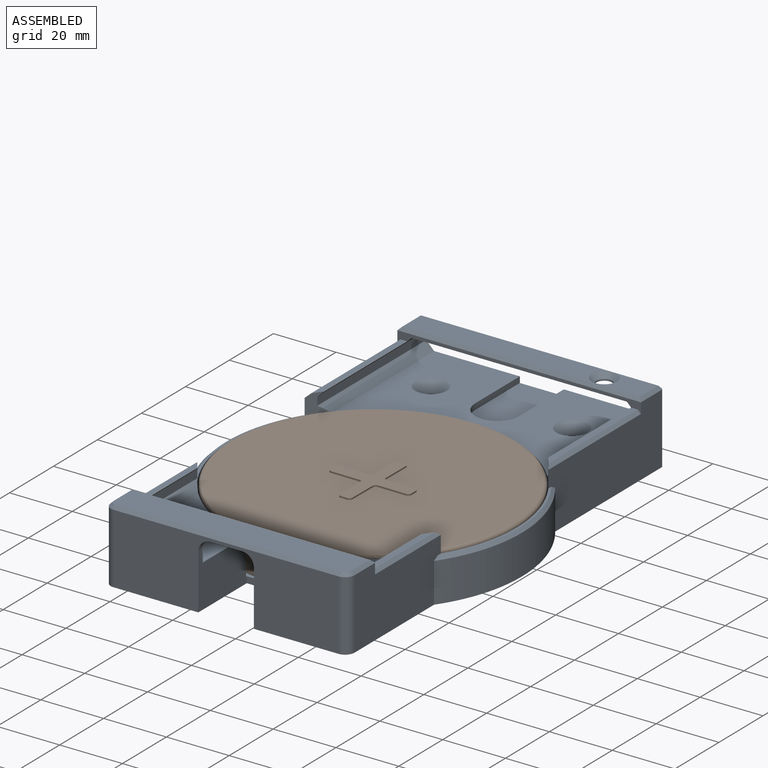
[diagram: assembled view]
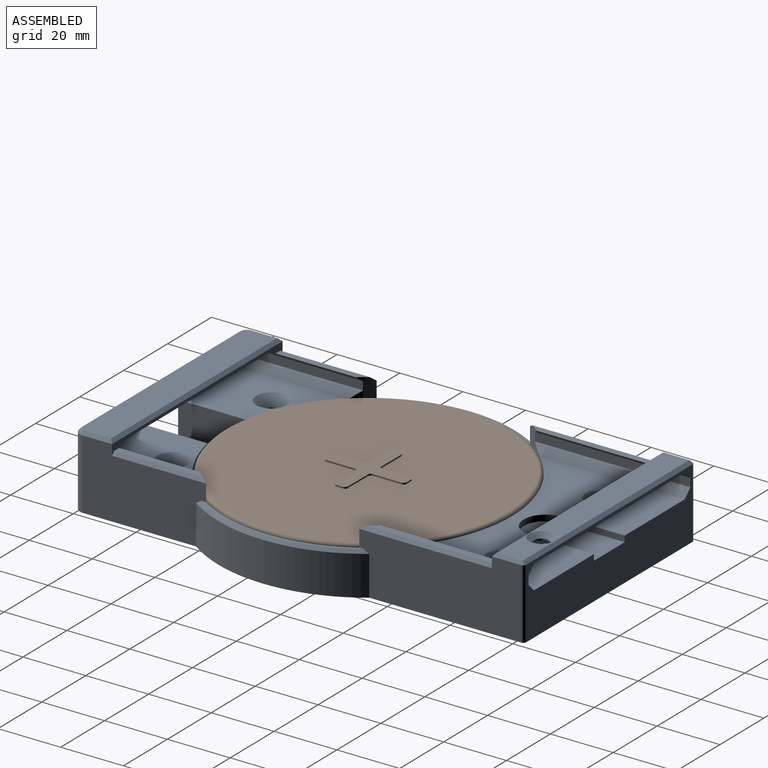
[diagram: assembled view, second angle]
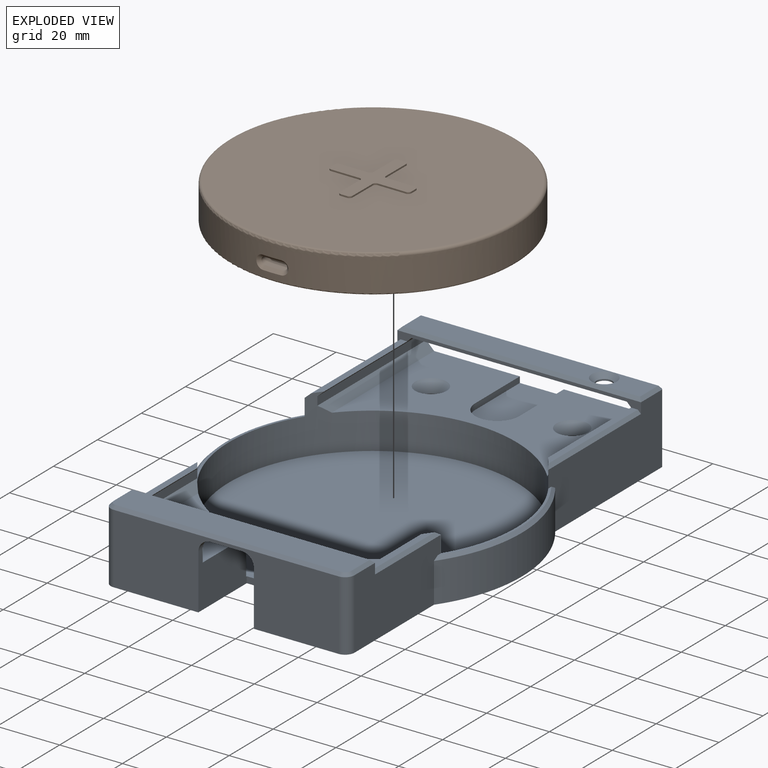
[diagram: exploded view]
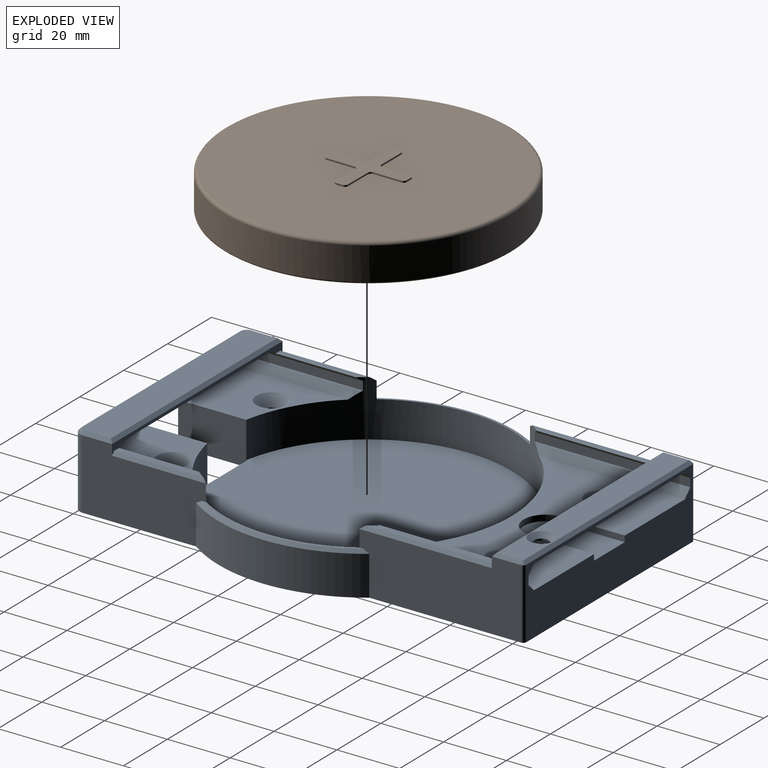
[diagram: exploded view, second angle]
FCSTD DOCUMENT  (FreeCAD 1.0R39319 (Git))
Label: NokiaSiroccoWallMount
License: All rights reserved
LicenseURL: https://en.wikipedia.org/wiki/All_rights_reserved
objects: Sketcher::SketchObject×11, PartDesign::Pocket×5, Part::Feature×5, PartDesign::Pad×4, PartDesign::Chamfer×4, Spreadsheet::Sheet×3, PartDesign::Hole×2, PartDesign::Fillet×2, App::Link×2, App::FeaturePython×2, PartDesign::Plane×1, PartDesign::Mirrored×1, PartDesign::Body×1, App::Part×1, Assembly::JointGroup×1, Assembly::AssemblyObject×1
note: 82 computed .brp shape members not serialized (recipe doc carries the construction recipe); baked Part::Feature solids carry a one-line shape summary decoded from their .brp

FEATURE [Spreadsheet::Sheet] Spreadsheet  label="phone"
  cells = A1='width; B1(width)==73 mm; A2='height; B2(height)==141 mm; A3='thickness; B3(thickness)==7.7 mm; A4='thickness camera; B4(thickness_camera)==9.3 mm; A5='top/bottom frame; B5(frame)==10 mm
FEATURE [Spreadsheet::Sheet] Spreadsheet001  label="config"
  cells = A1='clearance; B1(clearance)==0.3 mm; A2='thickness; B2(thickness)==2 mm
FEATURE [Sketcher::SketchObject] Sketch
  ArcFitTolerance = 1e-06
  AttachmentSupport = -> [XZ_Plane]
  FullyConstrained = true
  MakeInternals = false
  MapMode = 5
  Placement = pos=(0,0,0) rot=(1,0,0;1.5708rad)
  expr: Constraints[10] = <<config>>.thickness
  expr: Constraints[11] = <<config>>.thickness
  expr: Constraints[12] = <<phone>>.thickness
  expr: Constraints[22] = <<config>>.thickness
  expr: Constraints[9] = <<phone>>.width / 2 + <<config>>.clearance
  sketch-geometry (8):
    g0: LineSegment StartX=0 StartY=0 StartZ=0 EndX=-36.8 EndY=0 EndZ=0
    g1: LineSegment StartX=-36.8 StartY=0 StartZ=0 EndX=-36.8 EndY=7.7 EndZ=0
    g2: LineSegment StartX=0 StartY=9.7 StartZ=0 EndX=-38.8 EndY=9.7 EndZ=0
    g3: LineSegment StartX=-38.8 StartY=9.7 StartZ=0 EndX=-38.8 EndY=-2 EndZ=0
    g4: LineSegment StartX=-38.8 StartY=-2 StartZ=0 EndX=0 EndY=-2 EndZ=0
    g5: LineSegment StartX=0 StartY=0 StartZ=0 EndX=0 EndY=-2 EndZ=0
    g6: LineSegment StartX=-36.8 StartY=7.7 StartZ=0 EndX=0 EndY=7.7 EndZ=0
    g7: LineSegment StartX=0 StartY=7.7 StartZ=0 EndX=0 EndY=9.7 EndZ=0
  constraints (23):
    c: Coincident(g-1,g0)
    c: PointOnObject(g0,g-1)
    c: Coincident(g0,g1)
    c: Vertical(g1)
    c: Horizontal(g2)
    c: Coincident(g2,g3)
    c: Vertical(g3)
    c: Coincident(g3,g4)
    c: Horizontal(g4)
    c: DistanceX(g0,g0) = 36.8
    c: DistanceY(g4,g0) = 2
    c: DistanceX(g3,g0) = 2
    c: DistanceY(g1,g1) = 7.7
    c: PointOnObject(g4,g-2)
    c: Coincident(g5,g0)
    c: Coincident(g5,g4)
    c: Coincident(g1,g6)
    c: PointOnObject(g6,g-2)
    c: Horizontal(g6)
    c: Coincident(g6,g7)
    c: PointOnObject(g7,g-2)
    c: Coincident(g2,g7)
    c: DistanceY(g6,g2) = 2
FEATURE [PartDesign::Pad] Pad
  Direction = (0,-1,2e-16)
  Length = 141.6
  Length2 = 10
  Midplane = true
  Placement = pos=(0,0,0) rot=(1,0,0;1.5708rad)
  Profile = -> Sketch
  ReferenceAxis = -> Sketch [N_Axis]
  Refine = true
  Suppressed = false
  Type = 0
  expr: Length = <<phone>>.height + 2 * <<config>>.clearance
FEATURE [PartDesign::Plane] DatumPlane
  AttachmentOffset = pos=(0,0,70.8) rot=(0,0,1;0rad)
  AttachmentSupport = -> [XZ_Plane]
  Length = 108.98
  MapMode = 5
  Placement = pos=(0,-70.8,1.57e-14) rot=(1,0,0;1.5708rad)
  ResizeMode = 0
  Width = 63.7973
  expr: .AttachmentOffset.Base.z = <<phone>>.height / 2 + <<config>>.clearance
FEATURE [PartDesign::Chamfer] Chamfer
  Angle = 45
  Base = -> Pad [Edge5,Edge2]
  BaseFeature = -> Pad
  ChamferType = 0
  FlipDirection = false
  Placement = pos=(0,0,0) rot=(1,0,0;1.5708rad)
  Refine = true
  Size = 2.5
  Size2 = 1
  SupportTransform = false
  Suppressed = false
  UseAllEdges = false
FEATURE [PartDesign::Mirrored] Mirrored
  BaseFeature = -> Chamfer
  MirrorPlane = -> YZ_Plane
  Originals = -> [Chamfer,Pad]
  Placement = pos=(0,0,0) rot=(1,0,0;1.5708rad)
  Refine = true
  Suppressed = false
  TransformMode = 0
FEATURE [Sketcher::SketchObject] Sketch001
  ArcFitTolerance = 1e-06
  AttachmentSupport = -> [DatumPlane]
  ExternalGeometry = -> [Mirrored]
  FullyConstrained = true
  MakeInternals = false
  MapMode = 5
  Placement = pos=(0,-70.8,1.57e-14) rot=(1,0,0;1.5708rad)
  sketch-geometry (4):
    g0: LineSegment StartX=-38.8 StartY=9.7 StartZ=0 EndX=-38.8 EndY=-2 EndZ=0
    g1: LineSegment StartX=-38.8 StartY=-2 StartZ=0 EndX=38.8 EndY=-2 EndZ=0
    g2: LineSegment StartX=38.8 StartY=-2 StartZ=0 EndX=38.8 EndY=9.7 EndZ=0
    g3: LineSegment StartX=38.8 StartY=9.7 StartZ=0 EndX=-38.8 EndY=9.7 EndZ=0
  constraints (10):
    c: Coincident(g0,g1)
    c: Coincident(g1,g2)
    c: Coincident(g2,g3)
    c: Coincident(g3,g0)
    c: Vertical(g0)
    c: Vertical(g2)
    c: Horizontal(g1)
    c: Horizontal(g3)
    c: Coincident(g0,g-3)
    c: Coincident(g1,g-4)
FEATURE [PartDesign::Pad] Pad001
  BaseFeature = -> Mirrored
  Direction = (0,-1,2e-16)
  Length = 2
  Length2 = 10
  Placement = pos=(0,0,0) rot=(1,0,0;1.5708rad)
  Profile = -> Sketch001
  ReferenceAxis = -> Sketch001 [N_Axis]
  Refine = true
  Suppressed = false
  Type = 0
  expr: Length = <<config>>.thickness
FEATURE [Sketcher::SketchObject] Sketch002
  ArcFitTolerance = 1e-06
  AttachmentSupport = -> [YZ_Plane]
  FullyConstrained = true
  MakeInternals = false
  MapMode = 5
  Placement = pos=(0,0,0) rot=(0.57735,0.57735,0.57735;2.0944rad)
  expr: Constraints[10] = <<phone>>.height - 2 * <<phone>>.frame
  expr: Constraints[11] = <<phone>>.thickness / 2 + 2.5 mm
  sketch-geometry (5):
    g0: LineSegment StartX=-60.5 StartY=16.35 StartZ=0 EndX=-60.5 EndY=6.35 EndZ=0
    g1: LineSegment StartX=-60.5 StartY=6.35 StartZ=0 EndX=60.5 EndY=6.35 EndZ=0
    g2: LineSegment StartX=60.5 StartY=6.35 StartZ=0 EndX=60.5 EndY=16.35 EndZ=0
    g3: LineSegment StartX=60.5 StartY=16.35 StartZ=0 EndX=-60.5 EndY=16.35 EndZ=0
    g4: GeomPoint [constr] X=0 Y=11.35 Z=0
  constraints (13):
    c: Coincident(g0,g1)
    c: Coincident(g1,g2)
    c: Coincident(g2,g3)
    c: Coincident(g3,g0)
    c: Vertical(g0)
    c: Vertical(g2)
    c: Horizontal(g1)
    c: Horizontal(g3)
    c: Symmetric(g2,g0,g4)
    c: PointOnObject(g4,g-2)
    c: DistanceX(g3,g3) = 121
    c: DistanceY(g-1,g1) = 6.35
    c: DistanceY(g2,g2) = 10
FEATURE [PartDesign::Pocket] Pocket
  BaseFeature = -> Pad001
  Direction = (-1,0,0)
  Length = 5
  Length2 = 5
  Midplane = true
  Placement = pos=(0,0,0) rot=(1,0,0;1.5708rad)
  Profile = -> Sketch002
  ReferenceAxis = -> Sketch002 [N_Axis]
  Refine = true
  Suppressed = false
  Type = 1
FEATURE [Sketcher::SketchObject] Sketch003
  ArcFitTolerance = 1e-06
  AttachmentSupport = -> [XY_Plane]
  FullyConstrained = true
  MakeInternals = false
  MapMode = 5
  expr: Constraints[13] = <<phone>>.height / 2 + 10 mm
  expr: Constraints[22] = <<phone>>.height / 2 - 27 mm
  sketch-geometry (9):
    g0: LineSegment StartX=-7 StartY=80.5 StartZ=0 EndX=-7 EndY=50.5 EndZ=0
    g1: LineSegment [constr] StartX=-7 StartY=50.5 StartZ=0 EndX=7 EndY=50.5 EndZ=0
    g2: LineSegment StartX=7 StartY=50.5 StartZ=0 EndX=7 EndY=80.5 EndZ=0
    g3: LineSegment StartX=7 StartY=80.5 StartZ=0 EndX=-7 EndY=80.5 EndZ=0
    g4: GeomPoint [constr] X=0 Y=65.5 Z=0
    g5: ArcOfCircle CenterX=-1e-15 CenterY=50.5 CenterZ=0 NormalX=0 NormalY=0 NormalZ=1 AngleXU=0 Radius=7 StartAngle=3.14159 EndAngle=6.28319
    g6: LineSegment [constr] StartX=-7 StartY=50.5 StartZ=0 EndX=-7 EndY=43.5 EndZ=0
    g7: LineSegment [constr] StartX=-7 StartY=43.5 StartZ=0 EndX=7 EndY=43.5 EndZ=0
    g8: LineSegment [constr] StartX=7 StartY=43.5 StartZ=0 EndX=7 EndY=50.5 EndZ=0
  constraints (24):
    c: Coincident(g0,g1)
    c: Coincident(g1,g2)
    c: Coincident(g2,g3)
    c: Coincident(g3,g0)
    c: Vertical(g0)
    c: Vertical(g2)
    c: Horizontal(g1)
    c: Horizontal(g3)
    c: Symmetric(g2,g0,g4)
    c: PointOnObject(g4,g-2)
    c: Coincident(g5,g0)
    c: Coincident(g5,g1)
    c: PointOnObject(g5,g1)
    c: DistanceY(g-1,g2) = 80.5
    c: Coincident(g0,g6)
    c: Vertical(g6)
    c: Coincident(g6,g7)
    c: Horizontal(g7)
    c: Tangent(g7,g5)
    c: Coincident(g7,g8)
    c: Coincident(g8,g1)
    c: Vertical(g8)
    c: DistanceY(g-1,g6) = 43.5
    c: DistanceX(g3,g3) = 14
FEATURE [PartDesign::Pocket] Pocket001
  BaseFeature = -> Pocket
  Direction = (0,0,-1)
  Length = 1.9
  Length2 = 5
  Placement = pos=(0,0,0) rot=(1,0,0;1.5708rad)
  Profile = -> Sketch003
  ReferenceAxis = -> Sketch003 [N_Axis]
  Refine = true
  Suppressed = false
  Type = 0
  expr: Length = <<phone>>.thickness_camera - <<phone>>.thickness + <<config>>.clearance
FEATURE [Sketcher::SketchObject] Sketch004
  ArcFitTolerance = 1e-06
  AttachmentSupport = -> [DatumPlane]
  FullyConstrained = true
  MakeInternals = false
  MapMode = 5
  Placement = pos=(0,-70.8,1.57e-14) rot=(1,0,0;1.5708rad)
  expr: Constraints[6] = <<phone>>.thickness / 2
  expr: Constraints[7] = <<phone>>.thickness
  sketch-geometry (4):
    g0: ArcOfCircle CenterX=-5 CenterY=3.85 CenterZ=0 NormalX=0 NormalY=0 NormalZ=1 AngleXU=0 Radius=3.85 StartAngle=1.5708 EndAngle=4.71239
    g1: ArcOfCircle CenterX=5 CenterY=3.85 CenterZ=0 NormalX=0 NormalY=0 NormalZ=1 AngleXU=0 Radius=3.85 StartAngle=4.71239 EndAngle=7.85398
    g2: LineSegment StartX=-5 StartY=7.7 StartZ=0 EndX=5 EndY=7.7 EndZ=0
    g3: LineSegment StartX=-5 StartY=0 StartZ=0 EndX=5 EndY=0 EndZ=0
  constraints (9):
    c: Tangent(g0,g2) = 1.5708
    c: Tangent(g0,g3) = -1.5708
    c: Tangent(g1,g2) = 1.5708
    c: Tangent(g1,g3) = -1.5708
    c: Equal(g0,g1)
    c: Symmetric(g0,g1,g-2)
    c: DistanceY(g-1,g0) = 3.85
    c: DistanceY(g0,g0) = 7.7
    c: DistanceX(g3,g3) = 10
FEATURE [PartDesign::Pocket] Pocket002
  BaseFeature = -> Pocket001
  Direction = (0,1,-2e-16)
  Length = 5
  Length2 = 5
  Placement = pos=(0,0,0) rot=(1,0,0;1.5708rad)
  Profile = -> Sketch004
  ReferenceAxis = -> Sketch004 [N_Axis]
  Refine = true
  Reversed = true
  Suppressed = false
  Type = 0
FEATURE [Spreadsheet::Sheet] Spreadsheet002  label="charger"
  cells = A1='height; B1(height)==11.6 mm; A2='diameter; B2(diameter)==91.2 mm; A4='wall thickness; B4(wall_thickness)==2 mm
FEATURE [Sketcher::SketchObject] Sketch005
  ArcFitTolerance = 1e-06
  AttachmentSupport = -> [XY_Plane]
  ExternalGeometry = -> [Pocket002]
  FullyConstrained = true
  MakeInternals = false
  MapMode = 5
  expr: Constraints[0] = <<charger>>.diameter + <<charger>>.wall_thickness * 2
  sketch-geometry (2):
    g0: Circle CenterX=0 CenterY=-6.1 CenterZ=0 NormalX=0 NormalY=0 NormalZ=1 AngleXU=0 Radius=47.6
    g1: LineSegment [constr] StartX=0 StartY=43.5 StartZ=0 EndX=0 EndY=41.5 EndZ=0
  constraints (7):
    c: Diameter(g0) = 95.2
    c: PointOnObject(g0,g-2)
    c: PointOnObject(g1,g-3)
    c: PointOnObject(g1,g-2)
    c: PointOnObject(g1,g-2)
    c: PointOnObject(g1,g0)
    c: DistanceY(g1,g1) = 2
FEATURE [PartDesign::Pad] Pad002
  BaseFeature = -> Pocket002
  Direction = (0,0,1)
  Length = 13.6
  Length2 = 10
  Placement = pos=(0,0,0) rot=(1,0,0;1.5708rad)
  Profile = -> Sketch005
  ReferenceAxis = -> Sketch005 [N_Axis]
  Refine = true
  Reversed = true
  Suppressed = false
  Type = 0
  expr: Length = <<charger>>.height + <<config>>.thickness
FEATURE [Sketcher::SketchObject] Sketch006
  ArcFitTolerance = 1e-06
  AttachmentSupport = -> [Pad002]
  ExternalGeometry = -> [Pad002]
  FullyConstrained = true
  MakeInternals = false
  MapMode = 5
  Placement = pos=(0,-9e-16,-2) rot=(1,0,0;3.14159rad)
  sketch-geometry (4):
    g0: LineSegment StartX=-38.8 StartY=72.8 StartZ=0 EndX=-38.8 EndY=-70.8 EndZ=0
    g1: LineSegment StartX=-38.8 StartY=-70.8 StartZ=0 EndX=38.8 EndY=-70.8 EndZ=0
    g2: LineSegment StartX=38.8 StartY=-70.8 StartZ=0 EndX=38.8 EndY=72.8 EndZ=0
    g3: LineSegment StartX=38.8 StartY=72.8 StartZ=0 EndX=-38.8 EndY=72.8 EndZ=0
  constraints (10):
    c: Coincident(g0,g1)
    c: Coincident(g1,g2)
    c: Coincident(g2,g3)
    c: Coincident(g3,g0)
    c: Vertical(g0)
    c: Vertical(g2)
    c: Horizontal(g1)
    c: Horizontal(g3)
    c: Coincident(g0,g-3)
    c: Coincident(g1,g-4)
FEATURE [PartDesign::Pad] Pad003
  BaseFeature = -> Pad002
  Direction = (0,0,-1)
  Length = 10
  Length2 = 10
  Placement = pos=(0,0,0) rot=(1,0,0;1.5708rad)
  Profile = -> Sketch006
  ReferenceAxis = -> Sketch006 [N_Axis]
  Refine = true
  Suppressed = false
  Type = 3
  UpToFace = -> Pad002 [Face32]
FEATURE [Sketcher::SketchObject] Sketch007
  ArcFitTolerance = 1e-06
  AttachmentSupport = -> [XY_Plane]
  ExternalGeometry = -> [Pad003]
  FullyConstrained = true
  MakeInternals = false
  MapMode = 5
  expr: Constraints[1] = <<charger>>.diameter + 2 * 0.25 mm
  sketch-geometry (1):
    g0: Circle CenterX=0 CenterY=-6.1 CenterZ=0 NormalX=0 NormalY=0 NormalZ=1 AngleXU=0 Radius=45.85
  constraints (2):
    c: Coincident(g0,g-3)
    c: Diameter(g0) = 91.7
FEATURE [PartDesign::Pocket] Pocket003
  BaseFeature = -> Pad003
  Direction = (0,0,-1)
  Length = 11.6
  Length2 = 20
  Placement = pos=(0,0,0) rot=(1,0,0;1.5708rad)
  Profile = -> Sketch007
  ReferenceAxis = -> Sketch007 [N_Axis]
  Refine = true
  Suppressed = false
  Type = 4
  expr: Length = <<charger>>.height
FEATURE [Sketcher::SketchObject] Sketch008
  ArcFitTolerance = 1e-06
  AttachmentSupport = -> [Pocket003]
  FullyConstrained = true
  MakeInternals = false
  MapMode = 5
  Placement = pos=(0,-72.8,2.24e-14) rot=(1,0,0;1.5708rad)
  expr: Constraints[9] = <<charger>>.height * 2
  sketch-geometry (9):
    g0: LineSegment StartX=-8.85 StartY=-23.2 StartZ=0 EndX=8.85 EndY=-23.2 EndZ=0
    g1: LineSegment StartX=8.85 StartY=-23.2 StartZ=0 EndX=8.85 EndY=3.85 EndZ=0
    g2: LineSegment StartX=5 StartY=7.7 StartZ=0 EndX=-5 EndY=7.7 EndZ=0
    g3: LineSegment StartX=-8.85 StartY=3.85 StartZ=0 EndX=-8.85 EndY=-23.2 EndZ=0
    g4: GeomPoint [constr] X=0 Y=-7.75 Z=0
    g5: ArcOfCircle CenterX=-5 CenterY=3.85 CenterZ=0 NormalX=0 NormalY=0 NormalZ=1 AngleXU=0 Radius=3.85 StartAngle=1.5708 EndAngle=3.14159
    g6: GeomPoint [constr] X=-8.85 Y=7.7 Z=0
    g7: ArcOfCircle CenterX=5 CenterY=3.85 CenterZ=0 NormalX=0 NormalY=0 NormalZ=1 AngleXU=0 Radius=3.85 StartAngle=0 EndAngle=1.5708
    g8: GeomPoint [constr] X=8.85 Y=7.7 Z=0
  constraints (21):
    c: Coincident(g0,g1)
    c: Coincident(g3,g0)
    c: Horizontal(g0)
    c: Horizontal(g2)
    c: Vertical(g1)
    c: Vertical(g3)
    c: Symmetric(g8,g0,g4)
    c: PointOnObject(g4,g-2)
    c: DistanceY(g-1,g8) = 7.7
    c: DistanceY(g0,g-1) = 23.2
    c: PointOnObject(g6,g2)
    c: PointOnObject(g6,g3)
    c: Tangent(g2,g5) = -1.5708
    c: Tangent(g3,g5) = -1.5708
    c: PointOnObject(g8,g2)
    c: PointOnObject(g8,g1)
    c: Tangent(g2,g7) = -1.5708
    c: Tangent(g1,g7) = -1.5708
    c: DistanceX(g2,g2) = 10
    c: Diameter(g5) = 7.7
    c: Equal(g5,g7)
FEATURE [PartDesign::Pocket] Pocket004
  BaseFeature = -> Pocket003
  Direction = (0,1,-2e-16)
  Length = 22
  Length2 = 5
  Placement = pos=(0,0,0) rot=(1,0,0;1.5708rad)
  Profile = -> Sketch008
  ReferenceAxis = -> Sketch008 [N_Axis]
  Refine = true
  Suppressed = false
  Type = 0
FEATURE [Sketcher::SketchObject] Sketch009
  ArcFitTolerance = 1e-06
  AttachmentSupport = -> [Pocket004]
  FullyConstrained = true
  MakeInternals = false
  MapMode = 5
  Placement = pos=(0,0,4.6e-15) rot=(0,0,1;3.14159rad)
  sketch-geometry (9):
    g0: LineSegment [constr] StartX=-22.5 StartY=52.5 StartZ=0 EndX=-22.5 EndY=-52.5 EndZ=0
    g1: LineSegment [constr] StartX=-22.5 StartY=-52.5 StartZ=0 EndX=22.5 EndY=-52.5 EndZ=0
    g2: LineSegment [constr] StartX=22.5 StartY=-52.5 StartZ=0 EndX=22.5 EndY=52.5 EndZ=0
    g3: LineSegment [constr] StartX=22.5 StartY=52.5 StartZ=0 EndX=-22.5 EndY=52.5 EndZ=0
    g4: GeomPoint [constr] X=0 Y=-3.6e-15 Z=0
    g5: Circle CenterX=-22.5 CenterY=52.5 CenterZ=0 NormalX=0 NormalY=0 NormalZ=1 AngleXU=0 Radius=2
    g6: Circle CenterX=22.5 CenterY=52.5 CenterZ=0 NormalX=0 NormalY=0 NormalZ=1 AngleXU=0 Radius=2
    g7: Circle CenterX=22.5 CenterY=-52.5 CenterZ=0 NormalX=0 NormalY=0 NormalZ=1 AngleXU=0 Radius=2
    g8: Circle CenterX=-22.5 CenterY=-52.5 CenterZ=0 NormalX=0 NormalY=0 NormalZ=1 AngleXU=0 Radius=2
  constraints (20):
    c: Coincident(g0,g1)
    c: Coincident(g1,g2)
    c: Coincident(g2,g3)
    c: Coincident(g3,g0)
    c: Vertical(g2)
    c: Horizontal(g1)
    c: Horizontal(g3)
    c: Symmetric(g2,g0,g4)
    c: PointOnObject(g4,g-2)
    c: Coincident(g5,g0)
    c: Coincident(g6,g2)
    c: Coincident(g7,g1)
    c: Coincident(g8,g0)
    c: Equal(g6,g5)
    c: Equal(g5,g8)
    c: Equal(g5,g7)
    c: Diameter(g5) = 4
    c: DistanceY(g2,g2) = 105
    c: DistanceX(g1,g1) = 45
    c: Symmetric(g0,g0,g-1)
FEATURE [PartDesign::Hole] Hole
  BaseFeature = -> Pocket004
  CustomThreadClearance = 0
  Depth = 351.176
  DepthType = 1
  Diameter = 4
  DrillForDepth = false
  DrillPoint = 1
  DrillPointAngle = 118
  HoleCutCountersinkAngle = 90
  HoleCutCustomValues = false
  HoleCutDepth = 0
  HoleCutDiameter = 10
  HoleCutType = 2
  ModelThread = false
  Placement = pos=(0,0,0) rot=(1,0,0;1.5708rad)
  Profile = -> Sketch009
  Refine = true
  Suppressed = false
  Tapered = false
  TaperedAngle = 90
  ThreadClass = 0
  ThreadDepth = 351.176
  ThreadDepthType = 0
  ThreadDirection = 0
  ThreadFit = 0
  ThreadSize = 0
  ThreadType = 0
  Threaded = false
  UseCustomThreadClearance = false
FEATURE [Sketcher::SketchObject] Sketch010
  ArcFitTolerance = 1e-06
  AttachmentSupport = -> [Hole]
  ExternalGeometry = -> [Hole]
  FullyConstrained = true
  MakeInternals = false
  MapMode = 5
  Placement = pos=(0,4.3e-15,9.7) rot=(0,0,1;3.14159rad)
  expr: Constraints[0] = <<phone>>.width / 2 - 13 mm
  sketch-geometry (3):
    g0: Circle CenterX=-23.5 CenterY=-65.65 CenterZ=0 NormalX=0 NormalY=0 NormalZ=1 AngleXU=0 Radius=2.5
    g1: LineSegment [constr] StartX=-23.5 StartY=-65.65 StartZ=0 EndX=-23.5 EndY=-60.5 EndZ=0
    g2: LineSegment [constr] StartX=-23.5 StartY=-65.65 StartZ=0 EndX=-23.5 EndY=-70.8 EndZ=0
  constraints (9):
    c: DistanceX(g0,g-1) = 23.5
    c: Coincident(g1,g0)
    c: PointOnObject(g1,g-4)
    c: Vertical(g1)
    c: Coincident(g2,g0)
    c: PointOnObject(g2,g-3)
    c: Vertical(g2)
    c: Equal(g2,g1)
    c: Diameter(g0) = 5
FEATURE [PartDesign::Hole] Hole001
  BaseFeature = -> Hole
  CustomThreadClearance = 0
  Depth = 3
  DepthType = 0
  Diameter = 5
  DrillForDepth = false
  DrillPoint = 1
  DrillPointAngle = 118
  HoleCutCountersinkAngle = 90
  HoleCutCustomValues = false
  HoleCutDepth = 0
  HoleCutDiameter = 8
  HoleCutType = 2
  ModelThread = false
  Placement = pos=(0,0,0) rot=(1,0,0;1.5708rad)
  Profile = -> Sketch010
  Refine = true
  Suppressed = false
  Tapered = false
  TaperedAngle = 90
  ThreadClass = 0
  ThreadDepth = 3
  ThreadDepthType = 0
  ThreadDirection = 0
  ThreadFit = 0
  ThreadSize = 0
  ThreadType = 0
  Threaded = false
  UseCustomThreadClearance = false
FEATURE [PartDesign::Fillet] Fillet
  Base = -> Hole001 [Edge121,Edge111]
  BaseFeature = -> Hole001
  Placement = pos=(0,0,0) rot=(1,0,0;1.5708rad)
  Radius = 3
  Refine = true
  SupportTransform = false
  Suppressed = false
  UseAllEdges = false
FEATURE [PartDesign::Fillet] Fillet001
  Base = -> Fillet [Edge54,Edge45]
  BaseFeature = -> Fillet
  Placement = pos=(0,0,0) rot=(1,0,0;1.5708rad)
  Radius = 1
  Refine = true
  SupportTransform = false
  Suppressed = false
  UseAllEdges = false
FEATURE [PartDesign::Chamfer] Chamfer001
  Angle = 45
  Base = -> Fillet001 [Edge51,Edge73,Edge153]
  BaseFeature = -> Fillet001
  ChamferType = 0
  FlipDirection = false
  Placement = pos=(0,0,0) rot=(1,0,0;1.5708rad)
  Refine = true
  Size = 1
  Size2 = 1
  SupportTransform = false
  Suppressed = false
  UseAllEdges = false
FEATURE [PartDesign::Chamfer] Chamfer002
  Angle = 45
  Base = -> Chamfer001 [Edge90,Edge111,Edge188]
  BaseFeature = -> Chamfer001
  ChamferType = 0
  FlipDirection = false
  Placement = pos=(0,0,0) rot=(1,0,0;1.5708rad)
  Refine = true
  Size = 0.99
  Size2 = 1
  SupportTransform = false
  Suppressed = false
  UseAllEdges = false
FEATURE [PartDesign::Chamfer] Chamfer003
  Angle = 45
  Base = -> Chamfer002 [Edge102,Edge41,Edge43,Edge6,Edge121,Edge109,Edge105]
  BaseFeature = -> Chamfer002
  ChamferType = 0
  FlipDirection = false
  Placement = pos=(0,0,0) rot=(1,0,0;1.5708rad)
  Refine = true
  Size = 1
  Size2 = 1
  SupportTransform = false
  Suppressed = false
  UseAllEdges = false
FEATURE [PartDesign::Body] Body
  AllowCompound = false
  Group = -> [Sketch,Pad,DatumPlane,Chamfer,Mirrored,Sketch001,Pad001,Sketch002,Pocket,Sketch003,Pocket001,Sketch004,Pocket002,Sketch005,Pad002,Sketch006,Pad003,Sketch007,Pocket003,Sketch008,Pocket004,Sketch009,Hole,Sketch010,Hole001,Fillet,Fillet001,Chamfer001,Chamfer002,Chamfer003]
  Origin = -> Origin
  Tip = -> Chamfer003
FEATURE [Part::Feature] Part__Feature  label="Fabric"
  shape: bbox 98.5 x 98.5 x 2 mm, 4 faces (baked)
FEATURE [Part::Feature] Part__Feature001  label="Plus"
  shape: bbox 26 x 26 x 0.5 mm, 26 faces (baked)
FEATURE [Part::Feature] Part__Feature002  label="Rubber pads"
  shape: bbox 69.64 x 34 x 0.4 mm, 10 faces (baked)
FEATURE [Part::Feature] Part__Feature003  label="Rubber pads 2"
  shape: bbox 69.64 x 34 x 0.4 mm, 10 faces (baked)
FEATURE [Part::Feature] Part__Feature004  label="SOLID"
  shape: bbox 98.5 x 98.5 x 10 mm, 21 faces (baked)
FEATURE [App::Part] IKEA_NORDM_X_C4RKE_v6  label="IKEA NORDM\X\C4RKE v6"
  Group = -> [Part__Feature,Part__Feature001,Part__Feature002,Part__Feature003,Part__Feature004]
  Origin = -> Origin001
FEATURE [App::Link] Body001
  LinkedObject = -> Body
FEATURE [App::FeaturePython] GroundedJoint  # Assembly grounded joint (typed FeaturePython)
  ObjectToGround = -> Body001
FEATURE [App::Link] IKEA_NORDM_X_C4RKE_v007  label="IKEA NORDM\X\C4RKE v007"
  LinkPlacement = pos=(-1.14e-14,-5.9952,0.9) rot=(0,0,1;3.13281rad)
  LinkedObject = -> IKEA_NORDM_X_C4RKE_v6
  Placement = pos=(-1.14e-14,-5.9952,0.9) rot=(0,0,1;3.13281rad)
FEATURE [App::FeaturePython] Joint  label="Revolute"  # Assembly joint (typed FeaturePython)
  Activated = true
  AngleMax = 0
  AngleMin = 0
  Detach1 = false
  Detach2 = false
  Distance = 0
  Distance2 = 0
  EnableAngleMax = false
  EnableAngleMin = false
  EnableLengthMax = false
  EnableLengthMin = false
  JointType = 1 (Revolute)
  LengthMax = 0
  LengthMin = 0
  Offset2 = pos=(0,0,0.5) rot=(0,0,1;0rad)
  Placement1 = pos=(0,-5.9952,-11.6) rot=(0,0,1;0rad)
  Placement2 = pos=(-1.43e-14,2.2e-15,-12.5) rot=(0.707107,0.707107,0;3.14159rad)
  Reference1 = -> Assembly [Body001.Face38,Body001.Face38]
  Reference2 = -> Assembly [IKEA_NORDM_X_C4RKE_v007.Part__Feature004.Face3,IKEA_NORDM_X_C4RKE_v007.Part__Feature004.Face3]
FEATURE [Assembly::JointGroup] Joints
  Group = -> [GroundedJoint,Joint]
FEATURE [Assembly::AssemblyObject] Assembly
  Group = -> [Joints,Body001,GroundedJoint,IKEA_NORDM_X_C4RKE_v007,Joint]
  Origin = -> Origin002
  Type = Assembly
